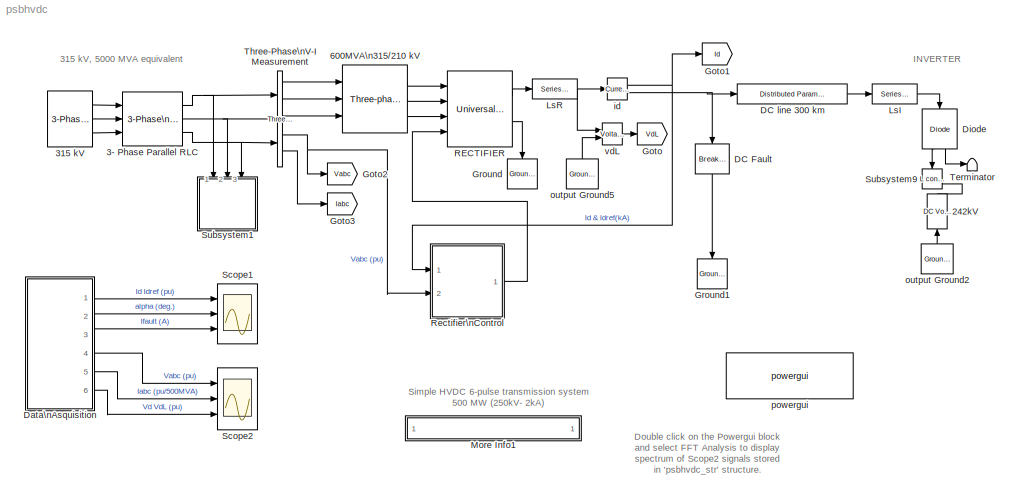
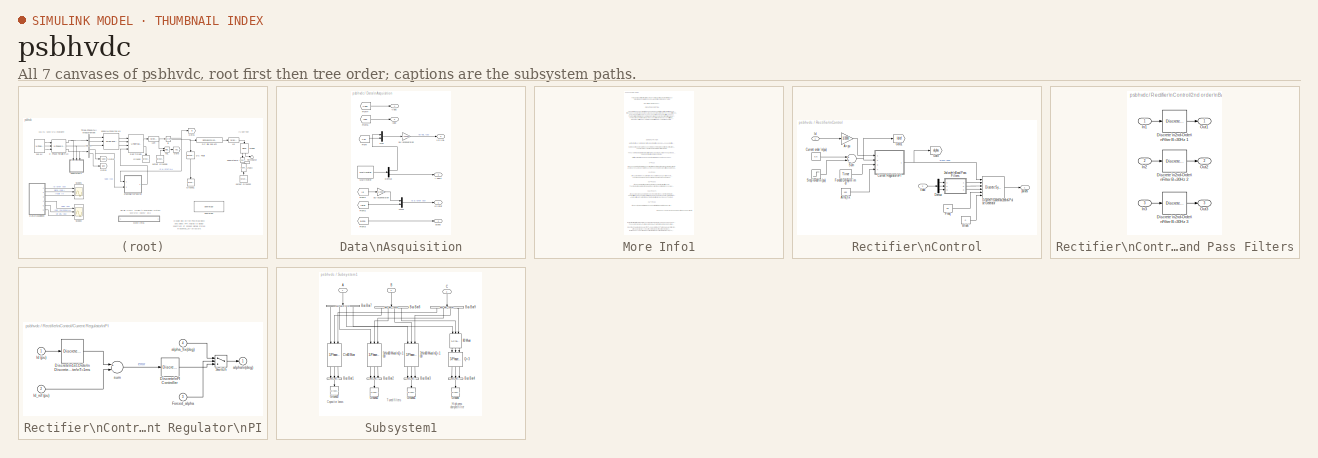
[diagram: thumbnail index - all 7 canvases of the model, root first then tree order]
MODEL psbhvdc
KIND model
CONFIG InitFcn = powericon('psbinitsys',bdroot);
BLOCK [Reference] 242kV  REF=powerlib2/Electrical\nSources/DC Voltage Source
  Description = source block
  PSBOutputType = 1
  Ports = [1, 1]
  SourceBlock = powerlib2/Electrical\nSources/DC Voltage Source
  SourceType = DC Voltage Source
  Tag = PoWeRsYsTeMbLoCk
  V = 242000
  mesure = None
BLOCK [Reference] 3- Phase Parallel RLC  REF=powerlib2/Elements/3-Phase\nParallel RLC Branch
  C = 0
  L = 23.264e-3
  Ports = [3, 3]
  R = 12.41
  SourceBlock = powerlib2/Elements/3-Phase\nParallel RLC Branch
  SourceType = 3-phase parallel RLC element
BLOCK [Reference] 315 kV  REF=powerlib2/Electrical\nSources/3-Phase Source
  F = 60
  InternalConnection = Yg
  L = 46.671e-3
  PSBOutputType = 111
  Phi = 0
  Ports = [0, 3]
  Psc = 0
  R = 0
  RLoff = off
  SourceBlock = powerlib2/Electrical\nSources/3-Phase Source
  SourceType = 3-Phase Source
  Tag = PoWeRsYsTeMbLoCk
  V = 315e3
  Vbase = 0
  XRratio = 0
BLOCK [Reference] 600MVA\n315//210 kV  REF=powerlib2/Elements/Three-phase\nTransformer\n(Two Windings)
  PSBOutputType = 1111
  Ports = [3, 3]
  SourceBlock = powerlib2/Elements/Three-phase\nTransformer\n(Two Windings)
  SourceType = Three-Phase Transformer (Two Windings)
  Tag = PoWeRsYsTeMbLoCk
  hyst = off
  initialslopes = [+1 +1 +1]
  lm = 500
  matfile = 'hysteresis'
  mesure = None
  nominal = [ 600e6 60 ]
  params1 = [ 315e3*0.97 0.0015  0.0 ]
  params2 = [ 210e3 0.0015 0.12]
  phi0 = [ 0.8 , -0.8 , 0.7 ]
  rmag = 500
  sat = [ 0,0  ;  0.005,1.2  ;  1.0,1.4 ]
  sif = off
  type1 = Yg
  type2 = Delta (D1)
  ynsat = off
BLOCK [Reference] DC Fault  REF=powerlib2/Elements/Breaker
  PSBOutputType = 1
  Ports = [1, 1]
  SourceBlock = powerlib2/Elements/Breaker
  SourceType = Breaker
  Tag = PoWeRsYsTeMbLoCk
  Ts = 0
  a = 0.1
  c = 0
  comext = off
  cs = 0
  mesure = Branch current
  rs = inf
  times = [ 0.5 0.51 ]
BLOCK [Reference] DC line 300 km  REF=powerlib2/Elements/Distributed Parameters Line
  PSBOutputType = 111111111111111111111111111111
  Ports = [1, 1]
  SourceBlock = powerlib2/Elements/Distributed Parameters Line
  SourceType = Distributed Parameters Line
  Tag = PoWeRsYsTeMbLoCk
  c = 14.4e-9
  f = 60
  l = 0.792e-3
  lgt = 300
  mesure = None
  n = 1
  r = 0.015
  x1 = [0 0 0 0; 0.0001244 0 0 0; 0.0002488 0 0 0; 0.0003733 0 0 0; 0.0004977 0 0 0; 0.0006221 0 0 0]
  x2 = [0 0 0 0; 0.0001244 0 0 0; 0.0002488 0 0 0; 0.0003733 0 0 0; 0.0004977 0 0 0; 0.0006221 0 0 0]
  x3 = [0 0 0 0; 0.0001244 0 0 0; 0.0002488 0 0 0; 0.0003733 0 0 0; 0.0004977 0 0 0; 0.0006221 0 0 0]
  x4 = [0 0 0 0; 0.0001244 0 0 0; 0.0002488 0 0 0; 0.0003733 0 0 0; 0.0004977 0 0 0; 0.0006221 0 0 0]
  x5 = 0
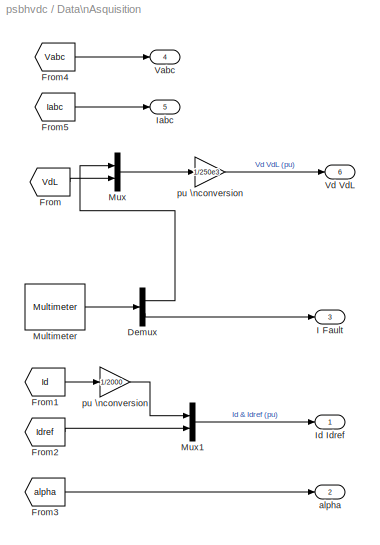
BLOCK [SubSystem] Data\nAsquisition
  MinAlgLoopOccurrences = off
  Ports = [0, 6]
  RTWSystemCode = Auto
  TreatAsAtomicUnit = off
BLOCK [Demux] Data\nAsquisition/Demux
  Outputs = 2
  Ports = [1, 2]
BLOCK [From] Data\nAsquisition/From
  CloseFcn = tagdialog Close
  DialogController = Simulink.DDGSource
  GotoTag = VdL
BLOCK [From] Data\nAsquisition/From1
  CloseFcn = tagdialog Close
  DialogController = Simulink.DDGSource
  GotoTag = Id
BLOCK [From] Data\nAsquisition/From2
  CloseFcn = tagdialog Close
  DialogController = Simulink.DDGSource
  GotoTag = Idref
BLOCK [From] Data\nAsquisition/From3
  CloseFcn = tagdialog Close
  DialogController = Simulink.DDGSource
  GotoTag = alpha
BLOCK [From] Data\nAsquisition/From4
  CloseFcn = tagdialog Close
  DialogController = Simulink.DDGSource
  GotoTag = Vabc
BLOCK [From] Data\nAsquisition/From5
  CloseFcn = tagdialog Close
  DialogController = Simulink.DDGSource
  GotoTag = Iabc
BLOCK [Outport] Data\nAsquisition/I Fault
  BusOutputAsStruct = off
  IconDisplay = Port number
  Port = 3
BLOCK [Outport] Data\nAsquisition/Iabc
  BusOutputAsStruct = off
  IconDisplay = Port number
  Port = 5
BLOCK [Outport] Data\nAsquisition/Id Idref 
  BusOutputAsStruct = off
  IconDisplay = Port number
BLOCK [Reference] Data\nAsquisition/Multimeter  REF=powerlib2/Measurements/Multimeter
  AxesSetting = [0,0.1,-100,100]
  Display = 0
  Gain = [1 1]
  L = 5
  OutputType = Magnitude
  PSBOutputType = 1
  PSBequivalent = 0
  PhasorSimulation = off
  Ports = [0, 1]
  SavedBlockNames = {}
  SourceBlock = powerlib2/Measurements/Multimeter
  SourceType = MultimeterPSB
  Tag = PoWeRsYsTeMmEaSuReMeNt
  sel = [4 5]
  yselected = {'Udc: RECTIFIER','Ib: DC Fault'};
BLOCK [Mux] Data\nAsquisition/Mux
  DisplayOption = bar
  Inputs = 2
  Ports = [2, 1]
BLOCK [Mux] Data\nAsquisition/Mux1
  DisplayOption = bar
  Inputs = 2
  Ports = [2, 1]
BLOCK [Outport] Data\nAsquisition/Vabc
  BusOutputAsStruct = off
  IconDisplay = Port number
  Port = 4
BLOCK [Outport] Data\nAsquisition/Vd VdL
  BusOutputAsStruct = off
  IconDisplay = Port number
  Port = 6
BLOCK [Outport] Data\nAsquisition/alpha
  BusOutputAsStruct = off
  IconDisplay = Port number
  Port = 2
BLOCK [Gain] Data\nAsquisition/pu \nconversion
  Gain = 1/2000
BLOCK [Gain] Data\nAsquisition/pu \nconversion 
  Gain = 1/250e3
BLOCK [Reference] Diode  REF=powerlib2/Power\nElectronics/Diode
  Cs = 0.05e-6
  IC = 0
  Lon = 0
  PSBOutputType = 10
  Ports = [1, 2]
  Ron = 0.01
  Rs = 1000
  SourceBlock = powerlib2/Power\nElectronics/Diode
  SourceType = Diode
  Tag = PoWeRsYsTeMbLoCk
  Vf = 0.8
BLOCK [Goto] Goto
  DialogController = Simulink.DDGSource
  GotoTag = VdL
  TagVisibility = global
BLOCK [Goto] Goto1
  DialogController = Simulink.DDGSource
  GotoTag = Id
  TagVisibility = global
BLOCK [Goto] Goto2
  DialogController = Simulink.DDGSource
  GotoTag = Vabc
  TagVisibility = global
BLOCK [Goto] Goto3
  DialogController = Simulink.DDGSource
  GotoTag = Iabc
  TagVisibility = global
BLOCK [Reference] Ground  REF=powerlib2/Connectors/Ground (input)
  Ports = [1]
  SourceBlock = powerlib2/Connectors/Ground (input)
  SourceType = Ground
  Tag = PoWeRsYsTeMbLoCk
BLOCK [Reference] Ground1  REF=powerlib2/Connectors/Ground (input)
  Ports = [1]
  SourceBlock = powerlib2/Connectors/Ground (input)
  SourceType = Ground
  Tag = PoWeRsYsTeMbLoCk
BLOCK [Reference] LsI  REF=powerlib2/Elements/Series RLC Branch
  PSBOutputType = 1
  Ports = [1, 1]
  SourceBlock = powerlib2/Elements/Series RLC Branch
  SourceType = Series RLC Branch
  Tag = PoWeRsYsTeMbLoCk
  a = .5
  b = .5
  c = inf
  mesure = None
BLOCK [Reference] LsR   REF=powerlib2/Elements/Series RLC Branch
  PSBOutputType = 1
  Ports = [1, 1]
  SourceBlock = powerlib2/Elements/Series RLC Branch
  SourceType = Series RLC Branch
  Tag = PoWeRsYsTeMbLoCk
  a = .5
  b = .5
  c = inf
  mesure = None
BLOCK [SubSystem] More Info1
  MaskDisplay = disp('? : Double click here for more info')
  MaskIconFrame = off
  MaskIconOpaque = on
  MaskIconRotate = none
  MaskIconUnits = autoscale
  MinAlgLoopOccurrences = off
  Ports = []
  RTWSystemCode = Auto
  TreatAsAtomicUnit = off
BLOCK [Reference] RECTIFIER  REF=powerlib2/Power\nElectronics/Universal Bridge
  Lon = 0
  PSBOutputType = 111
  Ports = [4, 2]
  Ron = 1e-3
  SourceBlock = powerlib2/Power\nElectronics/Universal Bridge
  SourceType = Universal Bridge
  Tag = PoWeRsYsTeMbLoCk
  VFs = [  0.8  0.8  ]
  Vf = 0
  arms = 3
  cf = 50e-9
  confi = ABC as input terminals
  device = Thyristors
  gtoparameters = [ 10e-6 , 20e-6 ]
  igbtparameters = [ 1e-6 , 2e-6 ]
  injcc = 2000
  mesure = UAB UBC UCA UDC voltages
BLOCK [SubSystem] Rectifier\nControl
  MinAlgLoopOccurrences = off
  Ports = [2, 1]
  RTWSystemCode = Auto
  TreatAsAtomicUnit = off
BLOCK [SubSystem] Rectifier\nControl/2nd order\nBand Pass Filters
  MaskDisplay = disp(' Fo=60 Hz<path>=30 Hz')
  MaskIconFrame = on
  MaskIconOpaque = on
  MaskIconRotate = none
  MaskIconUnits = autoscale
  MinAlgLoopOccurrences = off
  Ports = [3, 3]
  RTWSystemCode = Auto
  TreatAsAtomicUnit = off
BLOCK [Reference] Rectifier\nControl/2nd order\nBand Pass Filters/Discrete \n2nd-Order\nFilter B=30Hz 1  REF=powerlib_extras/Discrete \nControl Blocks/Discrete \n2nd-Order\nFilter
  FilterType = Bandpass
  Fo = 60
  Initialize = on
  PlotResponse = off
  Ports = [1, 1]
  SourceBlock = powerlib_extras/Discrete \nControl Blocks/Discrete \n2nd-Order\nFilter
  SourceType = Discrete 2nd-Order Filter
  Ts = 1/360/64
  Vac_Init = [0.8 -25 60]
  Vdc_Init = -0.4
  Zeta = 0.25
  param1 = [1 500 0.1]
BLOCK [Reference] Rectifier\nControl/2nd order\nBand Pass Filters/Discrete \n2nd-Order\nFilter B=30Hz 2  REF=powerlib_extras/Discrete \nControl Blocks/Discrete \n2nd-Order\nFilter
  FilterType = Bandpass
  Fo = 60
  Initialize = on
  PlotResponse = off
  Ports = [1, 1]
  SourceBlock = powerlib_extras/Discrete \nControl Blocks/Discrete \n2nd-Order\nFilter
  SourceType = Discrete 2nd-Order Filter
  Ts = 1/360/64
  Vac_Init = [0.8 -25 60]
  Vdc_Init = -0.4
  Zeta = 0.25
  param1 = [1 500 0.1]
BLOCK [Reference] Rectifier\nControl/2nd order\nBand Pass Filters/Discrete \n2nd-Order\nFilter B=30Hz 3  REF=powerlib_extras/Discrete \nControl Blocks/Discrete \n2nd-Order\nFilter
  FilterType = Bandpass
  Fo = 60
  Initialize = on
  PlotResponse = off
  Ports = [1, 1]
  SourceBlock = powerlib_extras/Discrete \nControl Blocks/Discrete \n2nd-Order\nFilter
  SourceType = Discrete 2nd-Order Filter
  Ts = 1/360/64
  Vac_Init = [0.8 -25 60]
  Vdc_Init = -0.4
  Zeta = 0.25
  param1 = [1 500 0.1]
BLOCK [Inport] Rectifier\nControl/2nd order\nBand Pass Filters/In1
  IconDisplay = Port number
  LatchInput = off
  Port = 1
BLOCK [Inport] Rectifier\nControl/2nd order\nBand Pass Filters/In2
  IconDisplay = Port number
  LatchInput = off
  Port = 2
BLOCK [Inport] Rectifier\nControl/2nd order\nBand Pass Filters/In3
  IconDisplay = Port number
  LatchInput = off
  Port = 3
BLOCK [Outport] Rectifier\nControl/2nd order\nBand Pass Filters/Out1
  BusOutputAsStruct = off
  IconDisplay = Port number
BLOCK [Outport] Rectifier\nControl/2nd order\nBand Pass Filters/Out2
  BusOutputAsStruct = off
  IconDisplay = Port number
  Port = 2
BLOCK [Outport] Rectifier\nControl/2nd order\nBand Pass Filters/Out3
  BusOutputAsStruct = off
  IconDisplay = Port number
  Port = 3
BLOCK [Gain] Rectifier\nControl/A>pu
  Gain = 1/2000
BLOCK [Constant] Rectifier\nControl/Alfa_fix
  MaskIconFrame = on
  MaskIconOpaque = on
  MaskIconRotate = none
  MaskIconUnits = autoscale
  Value = 165
BLOCK [Constant] Rectifier\nControl/Block
  MaskIconFrame = on
  MaskIconOpaque = on
  MaskIconRotate = none
  MaskIconUnits = autoscale
  Value = 0
BLOCK [SubSystem] Rectifier\nControl/Current Regulator\nPI
  MinAlgLoopOccurrences = off
  Ports = [4, 1]
  RTWSystemCode = Auto
  TreatAsAtomicUnit = off
BLOCK [Reference] Rectifier\nControl/Current Regulator\nPI/Discrete\n1st-Order\nDiscrete Filter\nT=1ms  REF=powerlib_extras/Discrete \nControl Blocks/Discrete\n1st-Order\nDiscrete Filter
  FilterType = Lowpass
  Initialize = off
  PlotResponse = off
  Ports = [1, 1]
  SourceBlock = powerlib_extras/Discrete \nControl Blocks/Discrete\n1st-Order\nDiscrete Filter
  SourceType = Discrete 1st-Order Filter
  Tc = 1e-3
  Ts = 1/360/64
  Vac_Init = [0.8 -25 60]
  Vdc_Init = -0.4
  param1 = [1 500 0.1]
BLOCK [Reference] Rectifier\nControl/Current Regulator\nPI/Discrete\nPI Controller  REF=powerlib_extras/Discrete \nControl Blocks/Discrete\nPI Controller
  Init = 90
  Ki = 5000
  Kp = 65
  Par_Limits = [165 5]
  Ports = [1, 1]
  SourceBlock = powerlib_extras/Discrete \nControl Blocks/Discrete\nPI Controller
  SourceType = Discrete PI Controller
  Ts = 1/360/64
BLOCK [Inport] Rectifier\nControl/Current Regulator\nPI/Forced_alpha
  IconDisplay = Port number
  LatchInput = off
  Port = 3
BLOCK [Inport] Rectifier\nControl/Current Regulator\nPI/Id (pu)
  IconDisplay = Port number
  LatchInput = off
  Port = 1
BLOCK [Inport] Rectifier\nControl/Current Regulator\nPI/Id_ref (pu)
  IconDisplay = Port number
  LatchInput = off
  Port = 2
BLOCK [Switch] Rectifier\nControl/Current Regulator\nPI/Switch
  SaturateOnIntegerOverflow = off
  Threshold = 0.5
  ZeroCross = off
BLOCK [Outport] Rectifier\nControl/Current Regulator\nPI/alpha\n(deg)
  BusOutputAsStruct = off
  IconDisplay = Port number
  InitialOutput = 0
BLOCK [Inport] Rectifier\nControl/Current Regulator\nPI/alpha_fix(deg)
  IconDisplay = Port number
  LatchInput = off
  Port = 4
BLOCK [Sum] Rectifier\nControl/Current Regulator\nPI/sum
  Inputs = +-
  Ports = [2, 1]
BLOCK [Constant] Rectifier\nControl/Current order \n(pu)
  MaskIconFrame = on
  MaskIconOpaque = on
  MaskIconRotate = none
  MaskIconUnits = autoscale
  Value = 0.5
BLOCK [Demux] Rectifier\nControl/Demux
  Outputs = 3
  Ports = [1, 3]
BLOCK [Reference] Rectifier\nControl/Discrete Synchronized\n6-Pulse Generator  REF=powerlib_extras/Discrete \nControl Blocks/Discrete Synchronized\n6-Pulse Generator
  Double_Pulse = off
  Ports = [6, 1]
  SourceBlock = powerlib_extras/Discrete \nControl Blocks/Discrete Synchronized\n6-Pulse Generator
  SourceType = Discrete Synchronized 6-pulse generator
  Ts = 1/360/64
  pwidth = 70
BLOCK [Reference] Rectifier\nControl/Forded Delay\nTimer  REF=powerlib_extras/Control \nBlocks/Timer
  Ports = [0, 1]
  SourceBlock = powerlib_extras/Control \nBlocks/Timer
  SourceType = Timer
  e = [1 0  ]
  t = [ 0.55 0.57]
BLOCK [Constant] Rectifier\nControl/Freq
  MaskIconFrame = on
  MaskIconOpaque = on
  MaskIconRotate = none
  MaskIconUnits = autoscale
  Value = 60
BLOCK [Goto] Rectifier\nControl/Goto
  DialogController = Simulink.DDGSource
  GotoTag = alpha
  TagVisibility = global
BLOCK [Goto] Rectifier\nControl/Goto1
  DialogController = Simulink.DDGSource
  GotoTag = Idref
  TagVisibility = global
BLOCK [Inport] Rectifier\nControl/Id
  IconDisplay = Port number
  LatchInput = off
  Port = 1
BLOCK [Step] Rectifier\nControl/Step Iorder\n (pu)  
  After = 0.6
  MaskIconFrame = on
  MaskIconOpaque = on
  MaskIconRotate = none
  MaskIconUnits = autoscale
  SampleTime = 0
  Time = 0.3
  ZeroCross = off
BLOCK [Sum] Rectifier\nControl/Sum
  MaskIconFrame = on
  MaskIconOpaque = on
  MaskIconRotate = none
  MaskIconUnits = autoscale
  Ports = [2, 1]
BLOCK [Inport] Rectifier\nControl/Vabc
  IconDisplay = Port number
  LatchInput = off
  Port = 2
BLOCK [Outport] Rectifier\nControl/pulses
  BusOutputAsStruct = off
  IconDisplay = Port number
BLOCK [Scope] Scope1
  DataFormat = Array
  LimitDataPoints = off
  NumInputPorts = 3
  Ports = [3]
  TimeRange = 0.8
  YMax = 2~170~6000
  YMin = -0.25~0~-500
  ZoomMode = yonly
BLOCK [Scope] Scope2
  DataFormat = StructureWithTime
  LimitDataPoints = off
  NumInputPorts = 3
  Ports = [3]
  SaveName = psbhvdc_str
  SaveToWorkspace = on
  TimeRange = 0.8
  YMax = 1.5~3~2
  YMin = -1.5~-3~-1.5
  ZoomMode = yonly
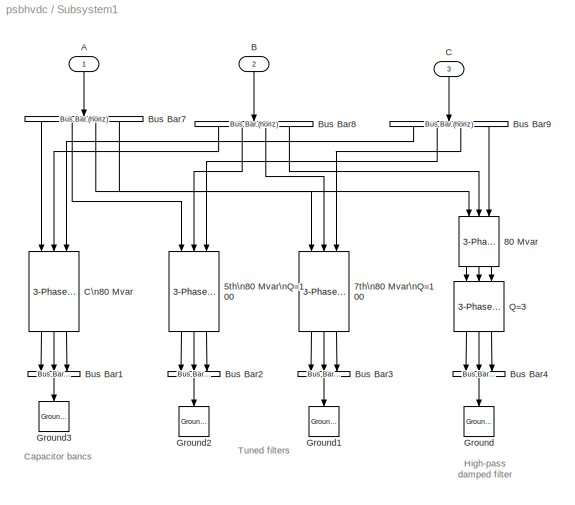
BLOCK [SubSystem] Subsystem1
  MaskDisplay = disp('AC filters \\n(320 Mvar)')
  MaskIconFrame = on
  MaskIconOpaque = off
  MaskIconRotate = none
  MaskIconUnits = autoscale
  MinAlgLoopOccurrences = off
  Ports = [3]
  RTWSystemCode = Auto
  TreatAsAtomicUnit = off
BLOCK [Reference] Subsystem1/5th\n80 Mvar\nQ=100   REF=powerlib2/Elements/3-Phase\nSeries RLC Branch 
  C = 2.14e-6
  L = 131.5e-3
  Ports = [3, 3]
  R = 2.48
  SourceBlock = powerlib2/Elements/3-Phase\nSeries RLC Branch
  SourceType = 3-phase RLC series element
BLOCK [Reference] Subsystem1/7th\n80 Mvar\nQ=100  REF=powerlib2/Elements/3-Phase\nSeries RLC Branch 
  C = 2.14e-6
  L = 67.1e-3
  Ports = [3, 3]
  R = 1.77
  SourceBlock = powerlib2/Elements/3-Phase\nSeries RLC Branch
  SourceType = 3-phase RLC series element
BLOCK [Reference] Subsystem1/80 Mvar  REF=powerlib2/Elements/3-Phase\nSeries RLC Branch 
  C = 2.14e-6
  L = 0
  Ports = [3, 3]
  R = 0
  SourceBlock = powerlib2/Elements/3-Phase\nSeries RLC Branch
  SourceType = 3-phase RLC series element
BLOCK [Inport] Subsystem1/A
  IconDisplay = Port number
  LatchInput = off
  MaskIconFrame = on
  MaskIconOpaque = on
  MaskIconRotate = none
  MaskIconUnits = autoscale
  Port = 1
BLOCK [Inport] Subsystem1/B
  IconDisplay = Port number
  LatchInput = off
  MaskIconFrame = on
  MaskIconOpaque = on
  MaskIconRotate = none
  MaskIconUnits = autoscale
  Port = 2
BLOCK [Reference] Subsystem1/Bus Bar1  REF=powerlib2/Connectors/Bus Bar (horiz)
  PSBOutputType = 1111111111111111111111111111111111111111111111111111111111111111111111111
  Ports = [3, 1]
  SourceBlock = powerlib2/Connectors/Bus Bar (horiz)
  SourceType = Bus Bar
  Tag = PoWeRsYsTeMbLoCk
  entrees = 3
  sorties = 1
BLOCK [Reference] Subsystem1/Bus Bar2  REF=powerlib2/Connectors/Bus Bar (horiz)
  PSBOutputType = 1111111111111111111111111111111111111111111111111111111111111111111111111
  Ports = [3, 1]
  SourceBlock = powerlib2/Connectors/Bus Bar (horiz)
  SourceType = Bus Bar
  Tag = PoWeRsYsTeMbLoCk
  entrees = 3
  sorties = 1
BLOCK [Reference] Subsystem1/Bus Bar3  REF=powerlib2/Connectors/Bus Bar (horiz)
  PSBOutputType = 1111111111111111111111111111111111111111111111111111111111111111111111111
  Ports = [3, 1]
  SourceBlock = powerlib2/Connectors/Bus Bar (horiz)
  SourceType = Bus Bar
  Tag = PoWeRsYsTeMbLoCk
  entrees = 3
  sorties = 1
BLOCK [Reference] Subsystem1/Bus Bar4  REF=powerlib2/Connectors/Bus Bar (horiz)
  PSBOutputType = 1111111111111111111111111111111111111111111111111111111111111111111111111
  Ports = [3, 1]
  SourceBlock = powerlib2/Connectors/Bus Bar (horiz)
  SourceType = Bus Bar
  Tag = PoWeRsYsTeMbLoCk
  entrees = 3
  sorties = 1
BLOCK [Reference] Subsystem1/Bus Bar7  REF=powerlib2/Connectors/Bus Bar (horiz)
  PSBOutputType = 1111111111111111111111111111111111111111111111111111111111111111111111111
  Ports = [1, 4]
  SourceBlock = powerlib2/Connectors/Bus Bar (horiz)
  SourceType = Bus Bar
  Tag = PoWeRsYsTeMbLoCk
  entrees = 1
  sorties = 4
BLOCK [Reference] Subsystem1/Bus Bar8  REF=powerlib2/Connectors/Bus Bar (horiz)
  PSBOutputType = 1111111111111111111111111111111111111111111111111111111111111111111111111
  Ports = [1, 4]
  SourceBlock = powerlib2/Connectors/Bus Bar (horiz)
  SourceType = Bus Bar
  Tag = PoWeRsYsTeMbLoCk
  entrees = 1
  sorties = 4
BLOCK [Reference] Subsystem1/Bus Bar9  REF=powerlib2/Connectors/Bus Bar (horiz)
  PSBOutputType = 1111111111111111111111111111111111111111111111111111111111111111111111111
  Ports = [1, 4]
  SourceBlock = powerlib2/Connectors/Bus Bar (horiz)
  SourceType = Bus Bar
  Tag = PoWeRsYsTeMbLoCk
  entrees = 1
  sorties = 4
BLOCK [Inport] Subsystem1/C
  IconDisplay = Port number
  LatchInput = off
  MaskIconFrame = on
  MaskIconOpaque = on
  MaskIconRotate = none
  MaskIconUnits = autoscale
  Port = 3
BLOCK [Reference] Subsystem1/C\n80 Mvar  REF=powerlib2/Elements/3-Phase\nSeries RLC Branch 
  C = 2.14e-6
  L = 0
  Ports = [3, 3]
  R = 0
  SourceBlock = powerlib2/Elements/3-Phase\nSeries RLC Branch
  SourceType = 3-phase RLC series element
BLOCK [Reference] Subsystem1/Ground  REF=powerlib2/Connectors/Ground (input)
  Ports = [1]
  SourceBlock = powerlib2/Connectors/Ground (input)
  SourceType = Ground
  Tag = PoWeRsYsTeMbLoCk
BLOCK [Reference] Subsystem1/Ground1  REF=powerlib2/Connectors/Ground (input)
  Ports = [1]
  SourceBlock = powerlib2/Connectors/Ground (input)
  SourceType = Ground
  Tag = PoWeRsYsTeMbLoCk
BLOCK [Reference] Subsystem1/Ground2  REF=powerlib2/Connectors/Ground (input)
  Ports = [1]
  SourceBlock = powerlib2/Connectors/Ground (input)
  SourceType = Ground
  Tag = PoWeRsYsTeMbLoCk
BLOCK [Reference] Subsystem1/Ground3  REF=powerlib2/Connectors/Ground (input)
  Ports = [1]
  SourceBlock = powerlib2/Connectors/Ground (input)
  SourceType = Ground
  Tag = PoWeRsYsTeMbLoCk
BLOCK [Reference] Subsystem1/Q=3  REF=powerlib2/Elements/3-Phase\nParallel RLC Branch
  C = 0
  L = 27.2e-3
  Ports = [3, 3]
  R = 225.6
  SourceBlock = powerlib2/Elements/3-Phase\nParallel RLC Branch
  SourceType = 3-phase parallel RLC element
BLOCK [Reference] Subsystem9  REF=powerlib2/Connectors/L connector
  Ports = [1, 0, 1]
  SourceBlock = powerlib2/Connectors/L connector
  SourceType = Bus Bar
  Tag = PoWeRsYsTeMbLoCk
BLOCK [Terminator] Terminator
BLOCK [Reference] Three-Phase\nV-I Measurement  REF=powerlib2/Measurements/Three-Phase\nV-I Measurement
  IChoice = yes
  OutputType = Magnitude
  PSBOutputType = 11100
  PSBequivalent = 0
  Pbase = 500e6
  PhasorSimulation = off
  Ports = [3, 5]
  Ppu = on
  SourceBlock = powerlib2/Measurements/Three-Phase\nV-I Measurement
  SourceType = 3-Phase VI Measurement
  Tag = PoWeRsYsTeMmEaSuReMeNt
  VChoice = phase-to-ground
  Vbase = 315e3
  Vpu = on
  labelC = I1
  labelV = V1
  ualc = off
  ualv = off
BLOCK [Reference] id  REF=powerlib2/Measurements/Current Measurement
  OutputType = Complex
  PSBOutputType = 01
  PSBequivalent = 0
  PhasorSimulation = off
  Ports = [1, 2]
  SourceBlock = powerlib2/Measurements/Current Measurement
  SourceType = Current Measurement
  Tag = PoWeRsYsTeMmEaSuReMeNt
BLOCK [Reference] output Ground2  REF=powerlib2/Connectors/Ground (output)
  PSBOutputType = 1
  Ports = [0, 1]
  SourceBlock = powerlib2/Connectors/Ground (output)
  SourceType = Ground
  Tag = PoWeRsYsTeMbLoCk
BLOCK [Reference] output Ground5  REF=powerlib2/Connectors/Ground (output)
  PSBOutputType = 1
  Ports = [0, 1]
  SourceBlock = powerlib2/Connectors/Ground (output)
  SourceType = Ground
  Tag = PoWeRsYsTeMbLoCk
BLOCK [Reference] powergui  REF=powerlib2/powergui
  DisplayStyle = off
  Frange = [0:2:500]
  FreqAxis = on
  MaxFrequency = 2000
  Ports = []
  RmsSteady = 1
  SourceBlock = powerlib2/powergui
  SourceType = PSB option menu block
  StartTime = 0.8-2/60
  Ts = 1/360/64
  Xlog = off
  Ylog = off
  ZoomFFT = on
  cycles = 2
  display = off
  echomessages = off
  frequency = 60
  frequencyindice = 1
  frequencyindicesteady = 1
  fundamental = 60
  methode = off
  save = off
  structure = psbhvdc_str
  variable = ZData
BLOCK [Reference] vdL  REF=powerlib2/Measurements/Voltage Measurement
  OutputType = Complex
  PSBOutputType = 0
  PSBequivalent = 0
  PhasorSimulation = off
  Ports = [2, 1]
  SourceBlock = powerlib2/Measurements/Voltage Measurement
  SourceType = Voltage Measurement
  Tag = PoWeRsYsTeMmEaSuReMeNt
ANNOTATION (root): 315 kV, 5000 MVA equivalent
ANNOTATION (root): Double click on the Powergui block \nand select FFT Analysis to display\n spectrum of Scope2 signals stored\nin 'psbhvdc_str' structure.
ANNOTATION (root): INVERTER
ANNOTATION (root): Simple HVDC 6-pulse transmission system\n500 MW (250kV- 2kA)
ANNOTATION More Info1: 0 < t < 0.3 s
ANNOTATION More Info1: 0.3 < t < 0.5 s
ANNOTATION More Info1: 0.5 < t < 0.55 s
ANNOTATION More Info1: 0.55 < t <0.57 s
ANNOTATION More Info1: 0.57 < t < 0.8 s
ANNOTATION More Info1: A 500 MW (250 kV, 2 kA) DC linterconnexion is used to transmit power from a 315 kV, 5000 MVA AC network. The network is simulated by a LLR damped equivalent \n(impedance angle of 80 degrees at 60 Hz and 3rd harmonic). The converter transformer and the rectifier are modelled respectively with the Universal Transformer \nand Universal Bridge blocks The converter is a 6-pulse rectifier. It is connect...<+1115ch>
ANNOTATION More Info1: At t = 0.3 s, the reference current is increased from 0.5 pu (1 kA) to the nominal current 1pu (2 kA). The current regulator responds in approximately 0.1 s (6 cycles).\nThe alpha angle decreases from 30 degrees to 15 degrees.
ANNOTATION More Info1: At t = 0.5 s, a DC fault is applied on the line. The fault current ( trace 3) increases to 5 kA and the Id current increases to to 2 pu (4 kA) in 10 ms. \nThen, the fast regulator action lowers the current back to its reference value of 1 pu..
ANNOTATION More Info1: At t = 0.55 s, the alpha angle is forced by the protection system (not simulated) to reach 165 degrees when the Forced_alpha input of the current regulator goes high (1). \nThe rectifier thus passes in inverter mode and sends the energy stored in the line back to the 345 kV network. \nAs a result, the arc current producing the fault rapidly decreases . The fault is cleared at t = 0.555 s when the ...<+39ch>
ANNOTATION More Info1: At t = 0.57 s, the regulator is released and it starts to regulate the DC current again. The steady-state 1 pu current is reached at t = 0.75 s.
ANNOTATION More Info1: CIRCUIT DESCRIPTION
ANNOTATION More Info1: DEMONSTRATION
ANNOTATION More Info1: Frequency analysis of AC and DC voltages and currents
ANNOTATION More Info1: G. Sybille (Hydro-Quebec)
ANNOTATION More Info1: In order to alllow further signal processing, signals displayed on Scope2 have been saved in a variable named 'psbvdc_str' ( structure with time'). \nThese signals are : AC voltages (input 1) , AC currents (input 2) and DC voltages on rectifier and line side of the smoothing reactor (input 3). \n\nOpen the Powergui and select 'FFT Analysis'. In the FFT window select structure 'psbhvdc_str'. The 0 ...<+800ch>
ANNOTATION More Info1: Note: In oder to appreciate the speed improvemnt obtained with discretisation, you may try continuous simulation mode after completing this demo.\n The discrete system is approximately 6 times faster.
ANNOTATION More Info1: Notice that the system is discretized (sample time 1/360/64 = 43.4 us). Setting, the sample time in to zero, will change to continuous integration for the power system .
ANNOTATION More Info1: The system is programmed to start and reach a steady state. Then, a step is applied on the reference current to observe the dynamic response of the regulator.\nFinally a DC fault is applied on the line. \n\nStart the simulation and observe the following events on Scope1 :
ANNOTATION More Info1: This demonstration illustrates steady-state and transient performance\nof a simple 500 MW (250 kV-2kA) HVDC transmission system
ANNOTATION More Info1: Trace 1 shows the the reference current (magenta) and the measured Id current (yellow). The reference current is set to 0.5 pu (1 kA). The DC current starts from zero\nand reaches a steady-state in 0.1 s. Trace 2 shows the alpha firing angle required to obtain 0.5 pu of current (30 degrees).
ANNOTATION Subsystem1: Capacitor bancs
ANNOTATION Subsystem1: High-pass\ndamped filter
ANNOTATION Subsystem1: Tuned filters
LINE 242kV:1 -> Subsystem9:enable
NET 3- Phase Parallel RLC:1 -> Subsystem1:1, Three-Phase\nV-I Measurement:1
NET 3- Phase Parallel RLC:2 -> Subsystem1:2, Three-Phase\nV-I Measurement:2
NET 3- Phase Parallel RLC:3 -> Subsystem1:3, Three-Phase\nV-I Measurement:3
LINE 315 kV:1 -> 3- Phase Parallel RLC:1
LINE 315 kV:2 -> 3- Phase Parallel RLC:2
LINE 315 kV:3 -> 3- Phase Parallel RLC:3
LINE 600MVA\n315//210 kV:1 -> RECTIFIER:1
LINE 600MVA\n315//210 kV:2 -> RECTIFIER:2
LINE 600MVA\n315//210 kV:3 -> RECTIFIER:3
LINE DC Fault:1 -> Ground1:1
LINE DC line 300 km:1 -> LsI:1
LINE Data\nAsquisition/Demux:1 -> Data\nAsquisition/Mux:1
LINE Data\nAsquisition/Demux:2 -> Data\nAsquisition/I Fault:1
LINE Data\nAsquisition/From1:1 -> Data\nAsquisition/pu \nconversion:1
LINE Data\nAsquisition/From2:1 -> Data\nAsquisition/Mux1:2
LINE Data\nAsquisition/From3:1 -> Data\nAsquisition/alpha:1
LINE Data\nAsquisition/From4:1 -> Data\nAsquisition/Vabc:1
LINE Data\nAsquisition/From5:1 -> Data\nAsquisition/Iabc:1
LINE Data\nAsquisition/From:1 -> Data\nAsquisition/Mux:2
LINE Data\nAsquisition/Multimeter:1 -> Data\nAsquisition/Demux:1
LINE Data\nAsquisition/Mux1:1 -> Data\nAsquisition/Id Idref :1
LINE Data\nAsquisition/Mux:1 -> Data\nAsquisition/pu \nconversion :1
LINE Data\nAsquisition/pu \nconversion :1 -> Data\nAsquisition/Vd VdL:1
LINE Data\nAsquisition/pu \nconversion:1 -> Data\nAsquisition/Mux1:1
LINE Data\nAsquisition:1 -> Scope1:1
LINE Data\nAsquisition:2 -> Scope1:2
LINE Data\nAsquisition:3 -> Scope1:3
LINE Data\nAsquisition:4 -> Scope2:1
LINE Data\nAsquisition:5 -> Scope2:2
LINE Data\nAsquisition:6 -> Scope2:3
LINE Diode:1 -> Subsystem9:1
LINE Diode:2 -> Terminator:1
LINE LsI:1 -> Diode:1
NET LsR :1 -> id:1, vdL:1
LINE RECTIFIER:1 -> LsR :1
LINE RECTIFIER:2 -> Ground:1
LINE Rectifier\nControl/2nd order\nBand Pass Filters/Discrete \n2nd-Order\nFilter B=30Hz 1:1 -> Rectifier\nControl/2nd order\nBand Pass Filters/Out1:1
LINE Rectifier\nControl/2nd order\nBand Pass Filters/Discrete \n2nd-Order\nFilter B=30Hz 2:1 -> Rectifier\nControl/2nd order\nBand Pass Filters/Out2:1
LINE Rectifier\nControl/2nd order\nBand Pass Filters/Discrete \n2nd-Order\nFilter B=30Hz 3:1 -> Rectifier\nControl/2nd order\nBand Pass Filters/Out3:1
LINE Rectifier\nControl/2nd order\nBand Pass Filters/In1:1 -> Rectifier\nControl/2nd order\nBand Pass Filters/Discrete \n2nd-Order\nFilter B=30Hz 1:1
LINE Rectifier\nControl/2nd order\nBand Pass Filters/In2:1 -> Rectifier\nControl/2nd order\nBand Pass Filters/Discrete \n2nd-Order\nFilter B=30Hz 2:1
LINE Rectifier\nControl/2nd order\nBand Pass Filters/In3:1 -> Rectifier\nControl/2nd order\nBand Pass Filters/Discrete \n2nd-Order\nFilter B=30Hz 3:1
LINE Rectifier\nControl/2nd order\nBand Pass Filters:1 -> Rectifier\nControl/Discrete Synchronized\n6-Pulse Generator:2
LINE Rectifier\nControl/2nd order\nBand Pass Filters:2 -> Rectifier\nControl/Discrete Synchronized\n6-Pulse Generator:3
LINE Rectifier\nControl/2nd order\nBand Pass Filters:3 -> Rectifier\nControl/Discrete Synchronized\n6-Pulse Generator:4
LINE Rectifier\nControl/A>pu:1 -> Rectifier\nControl/Current Regulator\nPI:1
LINE Rectifier\nControl/Alfa_fix:1 -> Rectifier\nControl/Current Regulator\nPI:4
LINE Rectifier\nControl/Block:1 -> Rectifier\nControl/Discrete Synchronized\n6-Pulse Generator:6
LINE Rectifier\nControl/Current Regulator\nPI/Discrete\n1st-Order\nDiscrete Filter\nT=1ms:1 -> Rectifier\nControl/Current Regulator\nPI/sum:1
LINE Rectifier\nControl/Current Regulator\nPI/Discrete\nPI Controller:1 -> Rectifier\nControl/Current Regulator\nPI/Switch:3
LINE Rectifier\nControl/Current Regulator\nPI/Forced_alpha:1 -> Rectifier\nControl/Current Regulator\nPI/Switch:2
LINE Rectifier\nControl/Current Regulator\nPI/Id (pu):1 -> Rectifier\nControl/Current Regulator\nPI/Discrete\n1st-Order\nDiscrete Filter\nT=1ms:1
LINE Rectifier\nControl/Current Regulator\nPI/Id_ref (pu):1 -> Rectifier\nControl/Current Regulator\nPI/sum:2
LINE Rectifier\nControl/Current Regulator\nPI/Switch:1 -> Rectifier\nControl/Current Regulator\nPI/alpha\n(deg):1
LINE Rectifier\nControl/Current Regulator\nPI/alpha_fix(deg):1 -> Rectifier\nControl/Current Regulator\nPI/Switch:1
LINE Rectifier\nControl/Current Regulator\nPI/sum:1 -> Rectifier\nControl/Current Regulator\nPI/Discrete\nPI Controller:1
NET Rectifier\nControl/Current Regulator\nPI:1 -> Rectifier\nControl/Discrete Synchronized\n6-Pulse Generator:1, Rectifier\nControl/Goto:1
LINE Rectifier\nControl/Current order \n(pu):1 -> Rectifier\nControl/Sum:1
LINE Rectifier\nControl/Demux:1 -> Rectifier\nControl/2nd order\nBand Pass Filters:1
LINE Rectifier\nControl/Demux:2 -> Rectifier\nControl/2nd order\nBand Pass Filters:2
LINE Rectifier\nControl/Demux:3 -> Rectifier\nControl/2nd order\nBand Pass Filters:3
LINE Rectifier\nControl/Discrete Synchronized\n6-Pulse Generator:1 -> Rectifier\nControl/pulses:1
LINE Rectifier\nControl/Forded Delay\nTimer:1 -> Rectifier\nControl/Current Regulator\nPI:3
LINE Rectifier\nControl/Freq:1 -> Rectifier\nControl/Discrete Synchronized\n6-Pulse Generator:5
LINE Rectifier\nControl/Id:1 -> Rectifier\nControl/A>pu:1
LINE Rectifier\nControl/Step Iorder\n (pu)  :1 -> Rectifier\nControl/Sum:2
NET Rectifier\nControl/Sum:1 -> Rectifier\nControl/Current Regulator\nPI:2, Rectifier\nControl/Goto1:1
LINE Rectifier\nControl/Vabc:1 -> Rectifier\nControl/Demux:1
LINE Rectifier\nControl:1 -> RECTIFIER:4
LINE Subsystem1/5th\n80 Mvar\nQ=100 :1 -> Subsystem1/Bus Bar2:1
LINE Subsystem1/5th\n80 Mvar\nQ=100 :2 -> Subsystem1/Bus Bar2:2
LINE Subsystem1/5th\n80 Mvar\nQ=100 :3 -> Subsystem1/Bus Bar2:3
LINE Subsystem1/7th\n80 Mvar\nQ=100:1 -> Subsystem1/Bus Bar3:1
LINE Subsystem1/7th\n80 Mvar\nQ=100:2 -> Subsystem1/Bus Bar3:2
LINE Subsystem1/7th\n80 Mvar\nQ=100:3 -> Subsystem1/Bus Bar3:3
LINE Subsystem1/80 Mvar:1 -> Subsystem1/Q=3:1
LINE Subsystem1/80 Mvar:2 -> Subsystem1/Q=3:2
LINE Subsystem1/80 Mvar:3 -> Subsystem1/Q=3:3
LINE Subsystem1/A:1 -> Subsystem1/Bus Bar7:1
LINE Subsystem1/B:1 -> Subsystem1/Bus Bar8:1
LINE Subsystem1/Bus Bar1:1 -> Subsystem1/Ground3:1
LINE Subsystem1/Bus Bar2:1 -> Subsystem1/Ground2:1
LINE Subsystem1/Bus Bar3:1 -> Subsystem1/Ground1:1
LINE Subsystem1/Bus Bar4:1 -> Subsystem1/Ground:1
LINE Subsystem1/Bus Bar7:1 -> Subsystem1/C\n80 Mvar:1
LINE Subsystem1/Bus Bar7:2 -> Subsystem1/5th\n80 Mvar\nQ=100 :1
LINE Subsystem1/Bus Bar7:3 -> Subsystem1/7th\n80 Mvar\nQ=100:1
LINE Subsystem1/Bus Bar7:4 -> Subsystem1/80 Mvar:1
LINE Subsystem1/Bus Bar8:1 -> Subsystem1/C\n80 Mvar:2
LINE Subsystem1/Bus Bar8:2 -> Subsystem1/5th\n80 Mvar\nQ=100 :2
LINE Subsystem1/Bus Bar8:3 -> Subsystem1/7th\n80 Mvar\nQ=100:2
LINE Subsystem1/Bus Bar8:4 -> Subsystem1/80 Mvar:2
LINE Subsystem1/Bus Bar9:1 -> Subsystem1/C\n80 Mvar:3
LINE Subsystem1/Bus Bar9:2 -> Subsystem1/5th\n80 Mvar\nQ=100 :3
LINE Subsystem1/Bus Bar9:3 -> Subsystem1/7th\n80 Mvar\nQ=100:3
LINE Subsystem1/Bus Bar9:4 -> Subsystem1/80 Mvar:3
LINE Subsystem1/C:1 -> Subsystem1/Bus Bar9:1
LINE Subsystem1/C\n80 Mvar:1 -> Subsystem1/Bus Bar1:1
LINE Subsystem1/C\n80 Mvar:2 -> Subsystem1/Bus Bar1:2
LINE Subsystem1/C\n80 Mvar:3 -> Subsystem1/Bus Bar1:3
LINE Subsystem1/Q=3:1 -> Subsystem1/Bus Bar4:1
LINE Subsystem1/Q=3:2 -> Subsystem1/Bus Bar4:2
LINE Subsystem1/Q=3:3 -> Subsystem1/Bus Bar4:3
LINE Three-Phase\nV-I Measurement:1 -> 600MVA\n315//210 kV:1
LINE Three-Phase\nV-I Measurement:2 -> 600MVA\n315//210 kV:2
LINE Three-Phase\nV-I Measurement:3 -> 600MVA\n315//210 kV:3
NET Three-Phase\nV-I Measurement:4 -> Goto2:1, Rectifier\nControl:2
LINE Three-Phase\nV-I Measurement:5 -> Goto3:1
NET id:1 -> Goto1:1, Rectifier\nControl:1
NET id:2 -> DC Fault:1, DC line 300 km:1
LINE output Ground2:1 -> 242kV:1
LINE output Ground5:1 -> vdL:2
LINE vdL:1 -> Goto:1
note: NET lines group one-source signal fan-out (src -> all destinations, sorted); 1:1 wires keep LINE
note: 1 file-system path scrubbed to <path> (not preserved elsewhere — flat text is the only slx artifact)
